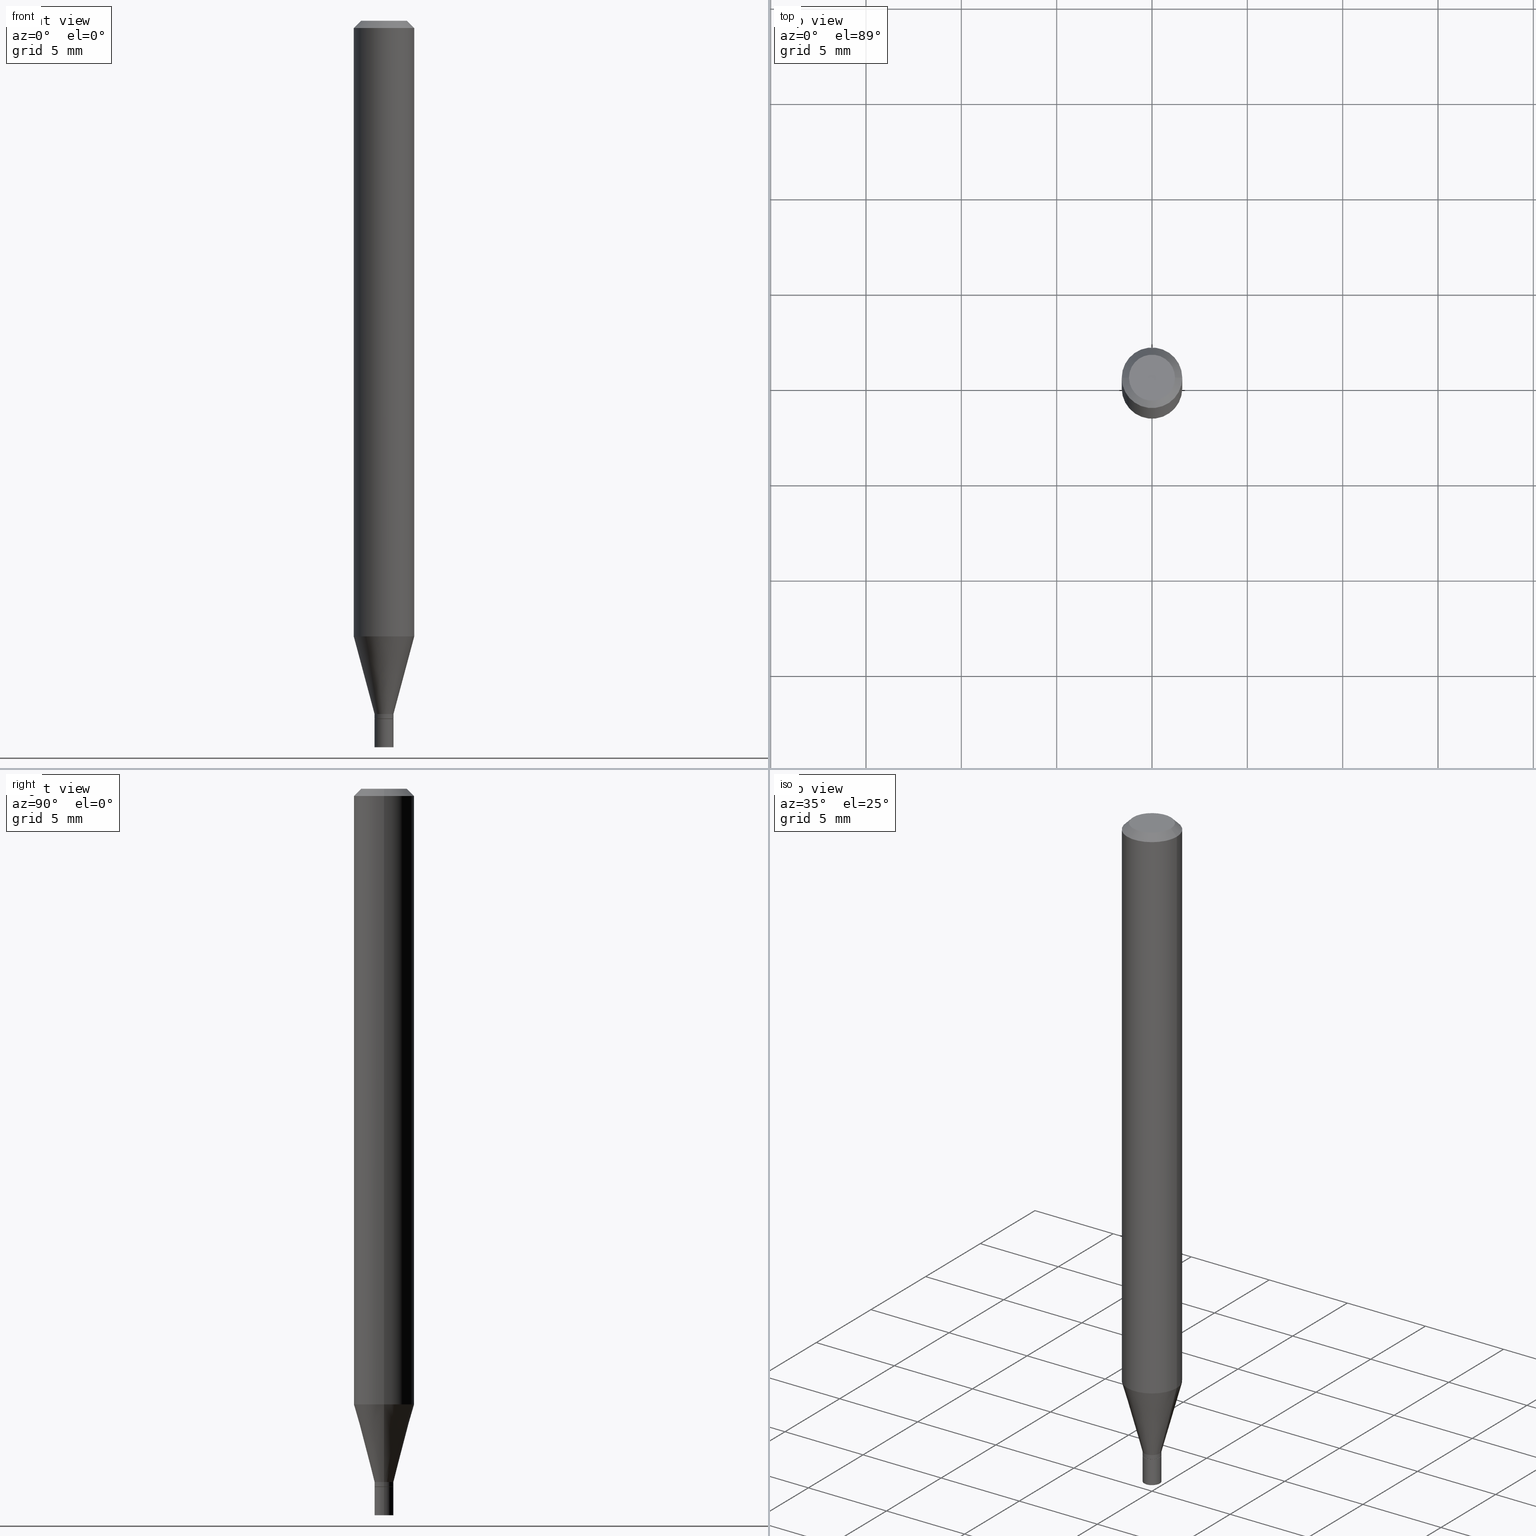
[diagram: canonical four-view strip — front | top / right | iso, engineering-drawing reading convention]
A machine part, canonical four-view strip (front | top / right | iso — engineering-drawing reading convention). The complete STEP part file that produces these views, byte-faithful:
ISO-10303-21;
HEADER;
FILE_DESCRIPTION (( 'STEP AP203' ),
    '1' );
FILE_NAME ('01119.STEP',
    '2024-03-19T23:05:25',
    ( '' ),
    ( '' ),
    'SwSTEP 2.0',
    'SolidWorks 2023',
    '' );
FILE_SCHEMA (( 'CONFIG_CONTROL_DESIGN' ));
ENDSEC;

DATA;
#1 = CARTESIAN_POINT ( 'NONE',  ( -0.04749999999999999362, 3.578768372314200645E-16, -5.645421759935625219E-16 ) ) ;
#2 =( NAMED_UNIT ( * ) PLANE_ANGLE_UNIT ( ) SI_UNIT ( $, .RADIAN. ) );
#3 = ADVANCED_FACE ( 'NONE', ( #386 ), #70, .T. ) ;
#4 = DIRECTION ( 'NONE',  ( -2.445468806185136597E-29, 3.491481338843145583E-15, 1.000000000000000000 ) ) ;
#5 = DIRECTION ( 'NONE',  ( -2.445468806185136877E-29, 3.491481338843145188E-15, 1.000000000000000000 ) ) ;
#6 = CARTESIAN_POINT ( 'NONE',  ( 3.108244201234690449E-29, -4.437748949293590216E-15, -1.271021815274538280 ) ) ;
#7 = VECTOR ( 'NONE', #207, 39.37007874015748854 ) ;
#8 = DIRECTION ( 'NONE',  ( -2.438088387897960049E-29, 3.491481338843145188E-15, 1.000000000000000000 ) ) ;
#9 = EDGE_LOOP ( 'NONE', ( #125, #135, #76, #274 ) ) ;
#10 = DIRECTION ( 'NONE',  ( 1.000000000000000000, -6.982962677686258033E-15, 0.000000000000000000 ) ) ;
#11 = DIRECTION ( 'NONE',  ( 1.000000000000000000, -6.982962677686267499E-15, 4.852736867747366768E-29 ) ) ;
#12 = ORIENTED_EDGE ( 'NONE', *, *, #420, .F. ) ;
#13 = FACE_OUTER_BOUND ( 'NONE', #128, .T. ) ;
#14 = ORIENTED_EDGE ( 'NONE', *, *, #58, .F. ) ;
#15 = CIRCLE ( 'NONE', #410, 0.04749999999999999362 ) ;
#16 = ORIENTED_EDGE ( 'NONE', *, *, #23, .F. ) ;
#17 = CALENDAR_DATE ( 2024, 19, 3 ) ;
#18 = DIRECTION ( 'NONE',  ( 1.000000000000000000, -6.982962677686267499E-15, 4.852736867747366768E-29 ) ) ;
#19 = CARTESIAN_POINT ( 'NONE',  ( 0.04749999999999999362, -4.035134999187588484E-16, -5.645421759935574929E-16 ) ) ;
#20 = ORIENTED_EDGE ( 'NONE', *, *, #237, .F. ) ;
#21 = PERSON_AND_ORGANIZATION ( #447, #236 ) ;
#22 = CC_DESIGN_APPROVAL ( #196, ( #311 ) ) ;
#23 = EDGE_CURVE ( 'NONE', #419, #407, #139, .T. ) ;
#24 = CARTESIAN_POINT ( 'NONE',  ( 3.525143284115875149E-29, -5.032970349942394371E-15, -1.441500000000000226 ) ) ;
#25 = CARTESIAN_POINT ( 'NONE',  ( 0.01949999999999992017, -5.134223308768844733E-15, -1.431499999999999995 ) ) ;
#26 = CIRCLE ( 'NONE', #203, 0.06250000000000000000 ) ;
#27 = CARTESIAN_POINT ( 'NONE',  ( 0.000000000000000000, 0.000000000000000000, 0.000000000000000000 ) ) ;
#28 = APPROVAL_PERSON_ORGANIZATION ( #405, #196, #49 ) ;
#29 = DIRECTION ( 'NONE',  ( 1.000000000000000000, -6.982962677686266711E-15, 4.876176775795935793E-29 ) ) ;
#30 = DIRECTION ( 'NONE',  ( 1.000000000000000000, -6.982962677686287221E-15, 0.000000000000000000 ) ) ;
#31 = LINE ( 'NONE', #315, #433 ) ;
#32 = CIRCLE ( 'NONE', #366, 0.06250000000000000000 ) ;
#33 = CC_DESIGN_PERSON_AND_ORGANIZATION_ASSIGNMENT ( #240, #340, ( #311 ) ) ;
#34 = AXIS2_PLACEMENT_3D ( 'NONE', #256, #466, #328 ) ;
#35 = FACE_OUTER_BOUND ( 'NONE', #342, .T. ) ;
#36 = CARTESIAN_POINT ( 'NONE',  ( 3.584916967085606921E-29, -5.356492647442320375E-15, -1.500000000000000222 ) ) ;
#37 = DIRECTION ( 'NONE',  ( 2.445468806185136597E-29, -3.491481338843145583E-15, -1.000000000000000000 ) ) ;
#38 = ORIENTED_EDGE ( 'NONE', *, *, #286, .T. ) ;
#39 = EDGE_CURVE ( 'NONE', #284, #453, #457, .T. ) ;
#40 = VERTEX_POINT ( 'NONE', #1 ) ;
#41 = CIRCLE ( 'NONE', #307, 0.01949999999999992017 ) ;
#42 = LINE ( 'NONE', #431, #169 ) ;
#43 = AXIS2_PLACEMENT_3D ( 'NONE', #138, #279, #10 ) ;
#44 = LINE ( 'NONE', #194, #7 ) ;
#45 = DATE_AND_TIME ( #272, #99 ) ;
#46 = ORIENTED_EDGE ( 'NONE', *, *, #223, .F. ) ;
#47 = APPROVAL_DATE_TIME ( #411, #61 ) ;
#48 = ORIENTED_EDGE ( 'NONE', *, *, #229, .T. ) ;
#49 = APPROVAL_ROLE ( '' ) ;
#50 = VECTOR ( 'NONE', #127, 39.37007874015748143 ) ;
#51 = APPROVAL_PERSON_ORGANIZATION ( #442, #61, #200 ) ;
#52 = ORIENTED_EDGE ( 'NONE', *, *, #211, .T. ) ;
#53 = CARTESIAN_POINT ( 'NONE',  ( -0.01899999999999999953, -4.897967230147975215E-15, -1.441500000000000226 ) ) ;
#54 = ORIENTED_EDGE ( 'NONE', *, *, #401, .F. ) ;
#55 = DIRECTION ( 'NONE',  ( 1.000000000000000000, -6.982962677686258033E-15, 0.000000000000000000 ) ) ;
#56 = MANIFOLD_SOLID_BREP ( 'Body-Move/Copy2[2]', #201 ) ;
#57 = LINE ( 'NONE', #398, #359 ) ;
#58 = EDGE_CURVE ( 'NONE', #332, #114, #175, .T. ) ;
#59 = VERTEX_POINT ( 'NONE', #104 ) ;
#60 = CONICAL_SURFACE ( 'NONE', #210, 0.01949999999999992017, 0.2617993877991499629 ) ;
#61 = APPROVAL ( #310, 'UNSPECIFIED' ) ;
#62 = DIRECTION ( 'NONE',  ( 0.7071067811865608954, -7.319954787623300222E-15, -0.7071067811865341390 ) ) ;
#63 = DIRECTION ( 'NONE',  ( 2.445468806185136597E-29, -3.491481338843145583E-15, -1.000000000000000000 ) ) ;
#64 = CARTESIAN_POINT ( 'NONE',  ( -0.01949999999999992017, -4.859499703080744245E-15, -1.431499999999999995 ) ) ;
#65 = ADVANCED_FACE ( 'NONE', ( #424 ), #73, .T. ) ;
#66 = AXIS2_PLACEMENT_3D ( 'NONE', #351, #219, #322 ) ;
#67 = FACE_OUTER_BOUND ( 'NONE', #9, .T. ) ;
#68 = CARTESIAN_POINT ( 'NONE',  ( -0.01949999999999992017, 1.385558334732189691E-16, -9.591923425997026856E-31 ) ) ;
#69 = DIRECTION ( 'NONE',  ( -2.445468806185136877E-29, 3.491481338843145188E-15, 1.000000000000000000 ) ) ;
#70 = CYLINDRICAL_SURFACE ( 'NONE', #352, 0.01949999999999992017 ) ;
#71 = ADVANCED_FACE ( 'NONE', ( #387 ), #281, .T. ) ;
#72 = DIRECTION ( 'NONE',  ( -2.445468806185136597E-29, 3.491481338843145583E-15, 1.000000000000000000 ) ) ;
#73 = CYLINDRICAL_SURFACE ( 'NONE', #409, 0.01949999999999992017 ) ;
#74 = CIRCLE ( 'NONE', #43, 0.01949999999999999997 ) ;
#75 = DIRECTION ( 'NONE',  ( -2.445468806185136597E-29, 3.491481338843145583E-15, 1.000000000000000000 ) ) ;
#76 = ORIENTED_EDGE ( 'NONE', *, *, #23, .T. ) ;
#77 = CC_DESIGN_DATE_AND_TIME_ASSIGNMENT ( #365, #202, ( #161 ) ) ;
#78 = DIRECTION ( 'NONE',  ( 1.000000000000000000, -6.982962677686266711E-15, 0.000000000000000000 ) ) ;
#79 = EDGE_LOOP ( 'NONE', ( #96, #171 ) ) ;
#80 = MECHANICAL_CONTEXT ( 'NONE', #367, 'mechanical' ) ;
#81 = DIRECTION ( 'NONE',  ( -2.445468806185136597E-29, 3.491481338843145583E-15, 1.000000000000000000 ) ) ;
#82 = VERTEX_POINT ( 'NONE', #144 ) ;
#83 = ADVANCED_BREP_SHAPE_REPRESENTATION ( '01119', ( #364, #56, #34 ), #292 ) ;
#84 = CARTESIAN_POINT ( 'NONE',  ( 3.500688596054023043E-29, -4.998055536553962721E-15, -1.431499999999999995 ) ) ;
#85 = AXIS2_PLACEMENT_3D ( 'NONE', #173, #278, #418 ) ;
#86 = ORIENTED_EDGE ( 'NONE', *, *, #39, .T. ) ;
#87 = EDGE_LOOP ( 'NONE', ( #46, #225, #38, #117 ) ) ;
#88 = DIRECTION ( 'NONE',  ( -2.445468806185136597E-29, 3.491481338843145583E-15, 1.000000000000000000 ) ) ;
#89 = CIRCLE ( 'NONE', #271, 0.01899999999999999953 ) ;
#90 = DIRECTION ( 'NONE',  ( -2.445468806185136877E-29, 3.491481338843145188E-15, 1.000000000000000000 ) ) ;
#91 = CARTESIAN_POINT ( 'NONE',  ( 0.000000000000000000, 0.000000000000000000, 0.000000000000000000 ) ) ;
#92 = SECURITY_CLASSIFICATION ( '', '', #162 ) ;
#93 = COORDINATED_UNIVERSAL_TIME_OFFSET ( 5, 0, .BEHIND. ) ;
#94 = FACE_OUTER_BOUND ( 'NONE', #160, .T. ) ;
#95 = EDGE_CURVE ( 'NONE', #114, #332, #269, .T. ) ;
#96 = ORIENTED_EDGE ( 'NONE', *, *, #140, .T. ) ;
#97 = LINE ( 'NONE', #378, #384 ) ;
#98 = AXIS2_PLACEMENT_3D ( 'NONE', #118, #152, #402 ) ;
#99 = LOCAL_TIME ( 19, 5, 25.00000000000000000, #373 ) ;
#100 = VERTEX_POINT ( 'NONE', #220 ) ;
#101 = PLANE ( 'NONE',  #85 ) ;
#102 = DIRECTION ( 'NONE',  ( -2.445468806185136597E-29, 3.491481338843145583E-15, 1.000000000000000000 ) ) ;
#103 = EDGE_CURVE ( 'NONE', #462, #191, #41, .T. ) ;
#104 = CARTESIAN_POINT ( 'NONE',  ( -0.06250000000000000000, -3.993659739443527600E-15, -1.271021815274538280 ) ) ;
#105 = CIRCLE ( 'NONE', #313, 0.01899999999999999953 ) ;
#106 = EDGE_CURVE ( 'NONE', #419, #59, #193, .T. ) ;
#107 = DIRECTION ( 'NONE',  ( 1.000000000000000000, -6.982962677686267499E-15, 4.876176775795935793E-29 ) ) ;
#108 = CC_DESIGN_DATE_AND_TIME_ASSIGNMENT ( #45, #448, ( #92 ) ) ;
#109 = CYLINDRICAL_SURFACE ( 'NONE', #443, 0.06250000000000000000 ) ;
#110 = APPROVAL_ROLE ( '' ) ;
#111 = AXIS2_PLACEMENT_3D ( 'NONE', #116, #437, #11 ) ;
#112 = DIRECTION ( 'NONE',  ( 1.000000000000000000, -6.982962677686265922E-15, 4.876176775795935793E-29 ) ) ;
#113 = DIRECTION ( 'NONE',  ( 1.000000000000000000, -6.982962677686265922E-15, 4.876176775795935793E-29 ) ) ;
#114 = VERTEX_POINT ( 'NONE', #185 ) ;
#115 = EDGE_CURVE ( 'NONE', #453, #362, #31, .T. ) ;
#116 = CARTESIAN_POINT ( 'NONE',  ( 1.380570281168130538E-44, -1.971088472471417818E-30, -5.645421759935600567E-16 ) ) ;
#117 = ORIENTED_EDGE ( 'NONE', *, *, #255, .F. ) ;
#118 = CARTESIAN_POINT ( 'NONE',  ( 0.000000000000000000, 0.000000000000000000, 0.000000000000000000 ) ) ;
#119 = EDGE_LOOP ( 'NONE', ( #234, #137, #436, #413 ) ) ;
#120 = DIRECTION ( 'NONE',  ( -2.445468806185136597E-29, 3.491481338843145583E-15, 1.000000000000000000 ) ) ;
#121 = ADVANCED_FACE ( 'NONE', ( #67 ), #109, .T. ) ;
#122 = CYLINDRICAL_SURFACE ( 'NONE', #257, 0.06250000000000000000 ) ;
#123 = ORIENTED_EDGE ( 'NONE', *, *, #401, .T. ) ;
#124 = APPROVAL_STATUS ( 'not_yet_approved' ) ;
#125 = ORIENTED_EDGE ( 'NONE', *, *, #429, .F. ) ;
#126 = APPROVAL_DATE_TIME ( #408, #196 ) ;
#127 = DIRECTION ( 'NONE',  ( -2.445468806185136877E-29, 3.491481338843145188E-15, 1.000000000000000000 ) ) ;
#128 = EDGE_LOOP ( 'NONE', ( #308, #213, #277, #16 ) ) ;
#129 = DIRECTION ( 'NONE',  ( -2.445468806185136597E-29, 3.491481338843145583E-15, 1.000000000000000000 ) ) ;
#130 = CARTESIAN_POINT ( 'NONE',  ( 3.525143284115875149E-29, -5.032970349942394371E-15, -1.441500000000000226 ) ) ;
#131 = DIRECTION ( 'NONE',  ( -2.445468806185136597E-29, 3.491481338843145583E-15, 1.000000000000000000 ) ) ;
#132 = DIRECTION ( 'NONE',  ( -0.2588190451025212391, 5.211531920934549464E-15, 0.9659258262890679791 ) ) ;
#133 = AXIS2_PLACEMENT_3D ( 'NONE', #205, #120, #209 ) ;
#134 = ADVANCED_FACE ( 'NONE', ( #35 ), #216, .T. ) ;
#135 = ORIENTED_EDGE ( 'NONE', *, *, #155, .T. ) ;
#136 = FACE_OUTER_BOUND ( 'NONE', #397, .T. ) ;
#137 = ORIENTED_EDGE ( 'NONE', *, *, #314, .T. ) ;
#138 = CARTESIAN_POINT ( 'NONE',  ( 3.668203209277704895E-29, -5.237222008264718177E-15, -1.500000000000000222 ) ) ;
#139 = LINE ( 'NONE', #417, #157 ) ;
#140 = EDGE_CURVE ( 'NONE', #40, #399, #15, .T. ) ;
#141 = AXIS2_PLACEMENT_3D ( 'NONE', #84, #75, #361 ) ;
#142 = DIRECTION ( 'NONE',  ( 1.000000000000000000, -6.982962677686281699E-15, 0.000000000000000000 ) ) ;
#143 = PERSON_AND_ORGANIZATION_ROLE ( 'design_owner' ) ;
#144 = CARTESIAN_POINT ( 'NONE',  ( -0.01899999999999999953, -4.895318002973864803E-15, -1.441500000000000226 ) ) ;
#145 = COORDINATED_UNIVERSAL_TIME_OFFSET ( 5, 0, .BEHIND. ) ;
#146 = UNCERTAINTY_MEASURE_WITH_UNIT (LENGTH_MEASURE( 1.000000000000000082E-05 ), #290, 'distance_accuracy_value', 'NONE');
#147 = CARTESIAN_POINT ( 'NONE',  ( 0.06250000000000000000, -4.888073874380388472E-16, -0.01499999999999999944 ) ) ;
#148 = FACE_OUTER_BOUND ( 'NONE', #208, .T. ) ;
#149 = ADVANCED_FACE ( 'NONE', ( #224 ), #357, .T. ) ;
#150 = AXIS2_PLACEMENT_3D ( 'NONE', #91, #81, #113 ) ;
#151 = ORIENTED_EDGE ( 'NONE', *, *, #237, .T. ) ;
#152 = DIRECTION ( 'NONE',  ( -2.445468806185136597E-29, 3.491481338843145583E-15, 1.000000000000000000 ) ) ;
#153 = ORIENTED_EDGE ( 'NONE', *, *, #155, .F. ) ;
#154 = ORIENTED_EDGE ( 'NONE', *, *, #267, .T. ) ;
#155 = EDGE_CURVE ( 'NONE', #59, #419, #244, .T. ) ;
#156 = ORIENTED_EDGE ( 'NONE', *, *, #39, .F. ) ;
#157 = VECTOR ( 'NONE', #69, 39.37007874015748143 ) ;
#158 = DIMENSIONAL_EXPONENTS ( 1.000000000000000000, 0.000000000000000000, 0.000000000000000000, 0.000000000000000000, 0.000000000000000000, 0.000000000000000000, 0.000000000000000000 ) ;
#159 = CARTESIAN_POINT ( 'NONE',  ( 0.01899999999999999953, -5.165646640818434164E-15, -1.441500000000000226 ) ) ;
#160 = EDGE_LOOP ( 'NONE', ( #300, #12 ) ) ;
#161 = PRODUCT_DEFINITION ( 'UNKNOWN', '', #311, #261 ) ;
#162 = SECURITY_CLASSIFICATION_LEVEL ( 'unclassified' ) ;
#163 = CYLINDRICAL_SURFACE ( 'NONE', #150, 0.01949999999999999997 ) ;
#164 = DIRECTION ( 'NONE',  ( -2.445468806185136597E-29, 3.491481338843145583E-15, 1.000000000000000000 ) ) ;
#165 = CARTESIAN_POINT ( 'NONE',  ( 3.500688596054023043E-29, -4.998055536553962721E-15, -1.431499999999999995 ) ) ;
#166 = CC_DESIGN_PERSON_AND_ORGANIZATION_ASSIGNMENT ( #368, #197, ( #311 ) ) ;
#167 = COORDINATED_UNIVERSAL_TIME_OFFSET ( 5, 0, .BEHIND. ) ;
#168 = DIRECTION ( 'NONE',  ( 1.000000000000000000, -6.982962677686281699E-15, 0.000000000000000000 ) ) ;
#169 = VECTOR ( 'NONE', #5, 39.37007874015748143 ) ;
#170 = APPROVAL_PERSON_ORGANIZATION ( #298, #275, #110 ) ;
#171 = ORIENTED_EDGE ( 'NONE', *, *, #223, .T. ) ;
#172 = ORIENTED_EDGE ( 'NONE', *, *, #229, .F. ) ;
#173 = CARTESIAN_POINT ( 'NONE',  ( 1.361677722149174363E-16, 0.01949999999999496580, -1.441500000000000226 ) ) ;
#174 = FACE_OUTER_BOUND ( 'NONE', #227, .T. ) ;
#175 = CIRCLE ( 'NONE', #430, 0.01949999999999992017 ) ;
#176 = AXIS2_PLACEMENT_3D ( 'NONE', #24, #131, #168 ) ;
#177 = AXIS2_PLACEMENT_3D ( 'NONE', #316, #344, #461 ) ;
#178 = CARTESIAN_POINT ( 'NONE',  ( 3.108244201234690449E-29, -4.437748949293590216E-15, -1.271021815274538280 ) ) ;
#179 = PLANE ( 'NONE',  #177 ) ;
#180 = DIRECTION ( 'NONE',  ( -2.445468806185136597E-29, 3.491481338843145583E-15, 1.000000000000000000 ) ) ;
#181 = ADVANCED_FACE ( 'NONE', ( #148 ), #163, .T. ) ;
#182 = CARTESIAN_POINT ( 'NONE',  ( 3.525143284115875149E-29, -5.032970349942394371E-15, -1.441500000000000226 ) ) ;
#183 = PRODUCT_RELATED_PRODUCT_CATEGORY ( 'detail', '', ( #388 ) ) ;
#184 = CARTESIAN_POINT ( 'NONE',  ( -0.01949999999999999997, -4.996540345630337403E-15, -1.500000000000000222 ) ) ;
#185 = CARTESIAN_POINT ( 'NONE',  ( -0.01949999999999992017, -4.426579721262135923E-15, -1.431499999999999995 ) ) ;
#186 = CC_DESIGN_SECURITY_CLASSIFICATION ( #92, ( #311 ) ) ;
#187 = APPLICATION_PROTOCOL_DEFINITION ( 'international standard', 'config_control_design', 1994, #367 ) ;
#188 = CARTESIAN_POINT ( 'NONE',  ( 3.668203209277705088E-31, -5.237222008264718399E-17, -0.01499999999999999944 ) ) ;
#189 = ADVANCED_FACE ( 'NONE', ( #435 ), #377, .T. ) ;
#190 = CARTESIAN_POINT ( 'NONE',  ( -0.01949999999999992017, -4.892668775799754391E-15, -1.441000000000000281 ) ) ;
#191 = VERTEX_POINT ( 'NONE', #190 ) ;
#192 = PLANE ( 'NONE',  #347 ) ;
#193 = CIRCLE ( 'NONE', #249, 0.06250000000000000000 ) ;
#194 = CARTESIAN_POINT ( 'NONE',  ( 0.01949999999999992017, -5.134223308768844733E-15, -1.431499999999999995 ) ) ;
#195 = EDGE_LOOP ( 'NONE', ( #360, #154, #376, #259 ) ) ;
#196 = APPROVAL ( #124, 'UNSPECIFIED' ) ;
#197 = PERSON_AND_ORGANIZATION_ROLE ( 'design_supplier' ) ;
#198 = DIRECTION ( 'NONE',  ( -2.445468806185136877E-29, 3.491481338843145188E-15, 1.000000000000000000 ) ) ;
#199 = ORIENTED_EDGE ( 'NONE', *, *, #320, .T. ) ;
#200 = APPROVAL_ROLE ( '' ) ;
#201 = CLOSED_SHELL ( 'NONE', ( #65, #334, #189, #380, #370, #440, #121, #134, #302, #243, #71, #3 ) ) ;
#202 = DATE_TIME_ROLE ( 'creation_date' ) ;
#203 = AXIS2_PLACEMENT_3D ( 'NONE', #214, #455, #385 ) ;
#204 = ORIENTED_EDGE ( 'NONE', *, *, #95, .F. ) ;
#205 = CARTESIAN_POINT ( 'NONE',  ( 3.523920549712782908E-29, -5.031224609272974445E-15, -1.441000000000000281 ) ) ;
#206 = CARTESIAN_POINT ( 'NONE',  ( -0.06250000000000000000, -1.800971374838056229E-15, -0.01499999999999999944 ) ) ;
#207 = DIRECTION ( 'NONE',  ( 0.2588190451025212391, 1.565188264969622362E-15, 0.9659258262890679791 ) ) ;
#208 = EDGE_LOOP ( 'NONE', ( #86, #297, #215, #348 ) ) ;
#209 = DIRECTION ( 'NONE',  ( 1.000000000000000000, -6.982962677686287221E-15, 0.000000000000000000 ) ) ;
#210 = AXIS2_PLACEMENT_3D ( 'NONE', #165, #88, #331 ) ;
#211 = EDGE_CURVE ( 'NONE', #393, #462, #273, .T. ) ;
#212 = FACE_OUTER_BOUND ( 'NONE', #79, .T. ) ;
#213 = ORIENTED_EDGE ( 'NONE', *, *, #429, .T. ) ;
#214 = CARTESIAN_POINT ( 'NONE',  ( 3.668203209277705088E-31, -5.237222008264718399E-17, -0.01499999999999999944 ) ) ;
#215 = ORIENTED_EDGE ( 'NONE', *, *, #395, .F. ) ;
#216 = CONICAL_SURFACE ( 'NONE', #321, 0.06250000000000000000, 0.7853981633974672638 ) ;
#217 = EDGE_CURVE ( 'NONE', #339, #407, #32, .T. ) ;
#218 = CARTESIAN_POINT ( 'NONE',  ( 1.380570281168130538E-44, -1.971088472471417818E-30, -5.645421759935600567E-16 ) ) ;
#219 = DIRECTION ( 'NONE',  ( -2.445468806185136597E-29, 3.491481338843145583E-15, 1.000000000000000000 ) ) ;
#220 = CARTESIAN_POINT ( 'NONE',  ( 0.01949999999999999997, -5.169138122157276382E-15, -1.441500000000000226 ) ) ;
#221 =( NAMED_UNIT ( * ) SI_UNIT ( $, .STERADIAN. ) SOLID_ANGLE_UNIT ( ) );
#222 = DIRECTION ( 'NONE',  ( 1.000000000000000000, -6.982962677686267499E-15, 4.876176775795935793E-29 ) ) ;
#223 = EDGE_CURVE ( 'NONE', #399, #40, #282, .T. ) ;
#224 = FACE_OUTER_BOUND ( 'NONE', #119, .T. ) ;
#225 = ORIENTED_EDGE ( 'NONE', *, *, #295, .T. ) ;
#226 = DIRECTION ( 'NONE',  ( -0.7071067811865642261, 7.493145998870414114E-15, 0.7071067811865309194 ) ) ;
#227 = EDGE_LOOP ( 'NONE', ( #438, #48, #303, #325 ) ) ;
#228 = APPLICATION_PROTOCOL_DEFINITION ( 'international standard', 'config_control_design', 1994, #463 ) ;
#229 = EDGE_CURVE ( 'NONE', #82, #191, #374, .T. ) ;
#230 = AXIS2_PLACEMENT_3D ( 'NONE', #317, #102, #252 ) ;
#231 = DIRECTION ( 'NONE',  ( -0.7071067811865608954, 2.468850131082397083E-15, -0.7071067811865341390 ) ) ;
#232 = AXIS2_PLACEMENT_3D ( 'NONE', #36, #394, #112 ) ;
#233 = PERSON_AND_ORGANIZATION ( #447, #236 ) ;
#234 = ORIENTED_EDGE ( 'NONE', *, *, #115, .F. ) ;
#235 = LINE ( 'NONE', #403, #392 ) ;
#236 = ORGANIZATION ( 'UNSPECIFIED', 'UNSPECIFIED', '' ) ;
#237 = EDGE_CURVE ( 'NONE', #462, #332, #262, .T. ) ;
#238 = FACE_OUTER_BOUND ( 'NONE', #195, .T. ) ;
#239 = ORIENTED_EDGE ( 'NONE', *, *, #395, .T. ) ;
#240 = PERSON_AND_ORGANIZATION ( #447, #236 ) ;
#241 = CARTESIAN_POINT ( 'NONE',  ( 3.525143284115875149E-29, -5.032970349942394371E-15, -1.441500000000000226 ) ) ;
#242 = EDGE_LOOP ( 'NONE', ( #330, #123, #14, #20 ) ) ;
#243 = ADVANCED_FACE ( 'NONE', ( #94 ), #192, .F. ) ;
#244 = CIRCLE ( 'NONE', #416, 0.06250000000000000000 ) ;
#245 = DIRECTION ( 'NONE',  ( 1.000000000000000000, -6.982962677686262766E-15, 0.000000000000000000 ) ) ;
#246 = CC_DESIGN_PERSON_AND_ORGANIZATION_ASSIGNMENT ( #233, #143, ( #388 ) ) ;
#247 = DIRECTION ( 'NONE',  ( -2.445468806185136597E-29, 3.491481338843145583E-15, 1.000000000000000000 ) ) ;
#248 = CARTESIAN_POINT ( 'NONE',  ( 0.01949999999999999997, -5.373389780479600977E-15, -1.500000000000000222 ) ) ;
#249 = AXIS2_PLACEMENT_3D ( 'NONE', #178, #287, #245 ) ;
#250 = LOCAL_TIME ( 19, 5, 25.00000000000000000, #145 ) ;
#251 = ORIENTED_EDGE ( 'NONE', *, *, #420, .T. ) ;
#252 = DIRECTION ( 'NONE',  ( 1.000000000000000000, -6.982962677686287221E-15, 0.000000000000000000 ) ) ;
#253 =( LENGTH_UNIT ( ) NAMED_UNIT ( * ) SI_UNIT ( $, .METRE. ) );
#254 = CARTESIAN_POINT ( 'NONE',  ( 0.000000000000000000, 0.000000000000000000, 0.000000000000000000 ) ) ;
#255 = EDGE_CURVE ( 'NONE', #40, #339, #57, .T. ) ;
#256 = CARTESIAN_POINT ( 'NONE',  ( 0.000000000000000000, 0.000000000000000000, 0.000000000000000000 ) ) ;
#257 = AXIS2_PLACEMENT_3D ( 'NONE', #264, #164, #371 ) ;
#258 = PLANE ( 'NONE',  #232 ) ;
#259 = ORIENTED_EDGE ( 'NONE', *, *, #260, .F. ) ;
#260 = EDGE_CURVE ( 'NONE', #332, #419, #44, .T. ) ;
#261 = DESIGN_CONTEXT ( 'detailed design', #463, 'design' ) ;
#262 = LINE ( 'NONE', #449, #50 ) ;
#263 = FACE_OUTER_BOUND ( 'NONE', #382, .T. ) ;
#264 = CARTESIAN_POINT ( 'NONE',  ( 0.000000000000000000, 0.000000000000000000, 0.000000000000000000 ) ) ;
#265 = ORIENTED_EDGE ( 'NONE', *, *, #140, .F. ) ;
#266 = DIRECTION ( 'NONE',  ( -2.445468806185136597E-29, 3.491481338843145583E-15, 1.000000000000000000 ) ) ;
#267 = EDGE_CURVE ( 'NONE', #114, #59, #428, .T. ) ;
#268 = COORDINATED_UNIVERSAL_TIME_OFFSET ( 5, 0, .BEHIND. ) ;
#269 = CIRCLE ( 'NONE', #230, 0.01949999999999992017 ) ;
#270 = EDGE_LOOP ( 'NONE', ( #375, #355, #406, #153 ) ) ;
#271 = AXIS2_PLACEMENT_3D ( 'NONE', #341, #129, #276 ) ;
#272 = CALENDAR_DATE ( 2024, 19, 3 ) ;
#273 = LINE ( 'NONE', #329, #291 ) ;
#274 = ORIENTED_EDGE ( 'NONE', *, *, #217, .F. ) ;
#275 = APPROVAL ( #285, 'UNSPECIFIED' ) ;
#276 = DIRECTION ( 'NONE',  ( 1.000000000000000000, -6.982962677686281699E-15, 0.000000000000000000 ) ) ;
#277 = ORIENTED_EDGE ( 'NONE', *, *, #286, .F. ) ;
#278 = DIRECTION ( 'NONE',  ( 2.438088387897960049E-29, -3.491481338843145188E-15, -1.000000000000000000 ) ) ;
#279 = DIRECTION ( 'NONE',  ( -2.445468806185136597E-29, 3.491481338843145583E-15, 1.000000000000000000 ) ) ;
#280 = CARTESIAN_POINT ( 'NONE',  ( 0.000000000000000000, 0.000000000000000000, 0.000000000000000000 ) ) ;
#281 = CONICAL_SURFACE ( 'NONE', #450, 0.01899999999999999953, 0.7853981633974718157 ) ;
#282 = CIRCLE ( 'NONE', #111, 0.04749999999999999362 ) ;
#283 = LOCAL_TIME ( 19, 5, 25.00000000000000000, #93 ) ;
#284 = VERTEX_POINT ( 'NONE', #248 ) ;
#285 = APPROVAL_STATUS ( 'not_yet_approved' ) ;
#286 = EDGE_CURVE ( 'NONE', #407, #339, #26, .T. ) ;
#287 = DIRECTION ( 'NONE',  ( -2.445468806185136597E-29, 3.491481338843145583E-15, 1.000000000000000000 ) ) ;
#288 = DATE_AND_TIME ( #389, #250 ) ;
#289 = DIRECTION ( 'NONE',  ( -2.445468806185136597E-29, 3.491481338843145583E-15, 1.000000000000000000 ) ) ;
#290 =( CONVERSION_BASED_UNIT ( 'INCH', #439 ) LENGTH_UNIT ( ) NAMED_UNIT ( #158 ) );
#291 = VECTOR ( 'NONE', #369, 39.37007874015748143 ) ;
#292 =( GEOMETRIC_REPRESENTATION_CONTEXT ( 3 ) GLOBAL_UNCERTAINTY_ASSIGNED_CONTEXT ( ( #146 ) ) GLOBAL_UNIT_ASSIGNED_CONTEXT ( ( #290, #2, #221 ) ) REPRESENTATION_CONTEXT ( 'NONE', 'WORKASPACE' ) );
#293 = DIRECTION ( 'NONE',  ( 1.000000000000000000, -6.982962677686262766E-15, 0.000000000000000000 ) ) ;
#294 = ORIENTED_EDGE ( 'NONE', *, *, #295, .F. ) ;
#295 = EDGE_CURVE ( 'NONE', #399, #407, #97, .T. ) ;
#296 = DIRECTION ( 'NONE',  ( 1.000000000000000000, -6.982962677686265922E-15, 4.876176775795935793E-29 ) ) ;
#297 = ORIENTED_EDGE ( 'NONE', *, *, #115, .T. ) ;
#298 = PERSON_AND_ORGANIZATION ( #447, #236 ) ;
#299 = CARTESIAN_POINT ( 'NONE',  ( 3.525143284115875149E-29, -5.032970349942394371E-15, -1.441500000000000226 ) ) ;
#300 = ORIENTED_EDGE ( 'NONE', *, *, #356, .F. ) ;
#301 = LOCAL_TIME ( 19, 5, 25.00000000000000000, #268 ) ;
#302 = ADVANCED_FACE ( 'NONE', ( #212 ), #179, .F. ) ;
#303 = ORIENTED_EDGE ( 'NONE', *, *, #103, .F. ) ;
#304 = CALENDAR_DATE ( 2024, 19, 3 ) ;
#305 = PERSON_AND_ORGANIZATION_ROLE ( 'creator' ) ;
#306 = CARTESIAN_POINT ( 'NONE',  ( 3.668203209277705088E-31, -5.237222008264718399E-17, -0.01499999999999999944 ) ) ;
#307 = AXIS2_PLACEMENT_3D ( 'NONE', #426, #324, #390 ) ;
#308 = ORIENTED_EDGE ( 'NONE', *, *, #106, .T. ) ;
#309 = VECTOR ( 'NONE', #90, 39.37007874015748143 ) ;
#310 = APPROVAL_STATUS ( 'not_yet_approved' ) ;
#311 = PRODUCT_DEFINITION_FORMATION_WITH_SPECIFIED_SOURCE ( 'ANY', '', #388, .NOT_KNOWN. ) ;
#312 = CARTESIAN_POINT ( 'NONE',  ( 3.525143284115875149E-29, -5.032970349942394371E-15, -1.441500000000000226 ) ) ;
#313 = AXIS2_PLACEMENT_3D ( 'NONE', #130, #72, #326 ) ;
#314 = EDGE_CURVE ( 'NONE', #453, #284, #74, .T. ) ;
#315 = CARTESIAN_POINT ( 'NONE',  ( -0.01949999999999999997, 1.385558334732195360E-16, -9.591923425997065392E-31 ) ) ;
#316 = CARTESIAN_POINT ( 'NONE',  ( 3.316907271900976096E-16, 0.04749999999999999362, -4.481164515918294248E-16 ) ) ;
#317 = CARTESIAN_POINT ( 'NONE',  ( 3.500688596054023043E-29, -4.998055536553962721E-15, -1.431499999999999995 ) ) ;
#318 = CC_DESIGN_PERSON_AND_ORGANIZATION_ASSIGNMENT ( #21, #333, ( #92 ) ) ;
#319 = DIRECTION ( 'NONE',  ( -2.445468806185136597E-29, 3.491481338843145583E-15, 1.000000000000000000 ) ) ;
#320 = EDGE_CURVE ( 'NONE', #191, #462, #335, .T. ) ;
#321 = AXIS2_PLACEMENT_3D ( 'NONE', #188, #63, #459 ) ;
#322 = DIRECTION ( 'NONE',  ( 1.000000000000000000, -6.982962677686258033E-15, 0.000000000000000000 ) ) ;
#323 = CARTESIAN_POINT ( 'NONE',  ( 0.01949999999999992017, -5.167392381487854879E-15, -1.441000000000000281 ) ) ;
#324 = DIRECTION ( 'NONE',  ( -2.445468806185136597E-29, 3.491481338843145583E-15, 1.000000000000000000 ) ) ;
#325 = ORIENTED_EDGE ( 'NONE', *, *, #211, .F. ) ;
#326 = DIRECTION ( 'NONE',  ( 1.000000000000000000, -6.982962677686281699E-15, 0.000000000000000000 ) ) ;
#327 = CIRCLE ( 'NONE', #451, 0.01949999999999999997 ) ;
#328 = DIRECTION ( 'NONE',  ( 1.000000000000000000, 0.000000000000000000, 0.000000000000000000 ) ) ;
#329 = CARTESIAN_POINT ( 'NONE',  ( 0.01899999999999999953, -5.165646640818434164E-15, -1.441500000000000226 ) ) ;
#330 = ORIENTED_EDGE ( 'NONE', *, *, #103, .T. ) ;
#331 = DIRECTION ( 'NONE',  ( 1.000000000000000000, -6.982962677686287221E-15, 0.000000000000000000 ) ) ;
#332 = VERTEX_POINT ( 'NONE', #25 ) ;
#333 = PERSON_AND_ORGANIZATION_ROLE ( 'classification_officer' ) ;
#334 = ADVANCED_FACE ( 'NONE', ( #174 ), #458, .T. ) ;
#335 = CIRCLE ( 'NONE', #133, 0.01949999999999992017 ) ;
#336 = SHAPE_DEFINITION_REPRESENTATION ( #414, #83 ) ;
#337 = DIRECTION ( 'NONE',  ( 1.000000000000000000, -6.982962677686258033E-15, 0.000000000000000000 ) ) ;
#338 = EDGE_CURVE ( 'NONE', #362, #100, #400, .T. ) ;
#339 = VERTEX_POINT ( 'NONE', #206 ) ;
#340 = PERSON_AND_ORGANIZATION_ROLE ( 'creator' ) ;
#341 = CARTESIAN_POINT ( 'NONE',  ( 3.525143284115875149E-29, -5.032970349942394371E-15, -1.441500000000000226 ) ) ;
#342 = EDGE_LOOP ( 'NONE', ( #294, #265, #379, #372 ) ) ;
#343 = CONICAL_SURFACE ( 'NONE', #141, 0.01949999999999992017, 0.2617993877991499629 ) ;
#344 = DIRECTION ( 'NONE',  ( 2.438088387897960049E-29, -3.491481338843145188E-15, -1.000000000000000000 ) ) ;
#345 = ADVANCED_FACE ( 'NONE', ( #136 ), #101, .F. ) ;
#346 = EDGE_LOOP ( 'NONE', ( #54, #199, #151, #204 ) ) ;
#347 = AXIS2_PLACEMENT_3D ( 'NONE', #241, #8, #296 ) ;
#348 = ORIENTED_EDGE ( 'NONE', *, *, #363, .F. ) ;
#349 = DIRECTION ( 'NONE',  ( -2.445468806185136597E-29, 3.491481338843145583E-15, 1.000000000000000000 ) ) ;
#350 = CC_DESIGN_PERSON_AND_ORGANIZATION_ASSIGNMENT ( #391, #305, ( #161 ) ) ;
#351 = CARTESIAN_POINT ( 'NONE',  ( 3.668203209277704895E-29, -5.237222008264718177E-15, -1.500000000000000222 ) ) ;
#352 = AXIS2_PLACEMENT_3D ( 'NONE', #280, #464, #222 ) ;
#353 = VECTOR ( 'NONE', #226, 39.37007874015748143 ) ;
#354 = DIRECTION ( 'NONE',  ( -2.445468806185136597E-29, 3.491481338843145583E-15, 1.000000000000000000 ) ) ;
#355 = ORIENTED_EDGE ( 'NONE', *, *, #95, .T. ) ;
#356 = EDGE_CURVE ( 'NONE', #393, #82, #89, .T. ) ;
#357 = CYLINDRICAL_SURFACE ( 'NONE', #98, 0.01949999999999999997 ) ;
#358 = EDGE_LOOP ( 'NONE', ( #172, #251, #52, #441 ) ) ;
#359 = VECTOR ( 'NONE', #231, 39.37007874015748143 ) ;
#360 = ORIENTED_EDGE ( 'NONE', *, *, #58, .T. ) ;
#361 = DIRECTION ( 'NONE',  ( 1.000000000000000000, -6.982962677686287221E-15, 0.000000000000000000 ) ) ;
#362 = VERTEX_POINT ( 'NONE', #445 ) ;
#363 = EDGE_CURVE ( 'NONE', #284, #100, #235, .T. ) ;
#364 = MANIFOLD_SOLID_BREP ( 'Body-Move/Copy2[1]', #415 ) ;
#365 = DATE_AND_TIME ( #17, #444 ) ;
#366 = AXIS2_PLACEMENT_3D ( 'NONE', #306, #4, #78 ) ;
#367 = APPLICATION_CONTEXT ( 'configuration controlled 3d designs of mechanical parts and assemblies' ) ;
#368 = PERSON_AND_ORGANIZATION ( #447, #236 ) ;
#369 = DIRECTION ( 'NONE',  ( 0.7071067811865642261, -2.468850131082431399E-15, 0.7071067811865309194 ) ) ;
#370 = ADVANCED_FACE ( 'NONE', ( #238 ), #60, .T. ) ;
#371 = DIRECTION ( 'NONE',  ( 1.000000000000000000, -6.982962677686266711E-15, 4.876176775795935793E-29 ) ) ;
#372 = ORIENTED_EDGE ( 'NONE', *, *, #217, .T. ) ;
#373 = COORDINATED_UNIVERSAL_TIME_OFFSET ( 5, 0, .BEHIND. ) ;
#374 = LINE ( 'NONE', #53, #353 ) ;
#375 = ORIENTED_EDGE ( 'NONE', *, *, #267, .F. ) ;
#376 = ORIENTED_EDGE ( 'NONE', *, *, #106, .F. ) ;
#377 = CONICAL_SURFACE ( 'NONE', #423, 0.06250000000000000000, 0.7853981633974672638 ) ;
#378 = CARTESIAN_POINT ( 'NONE',  ( 0.06250000000000000000, -4.811533449433679005E-16, -0.01499999999999999944 ) ) ;
#379 = ORIENTED_EDGE ( 'NONE', *, *, #255, .T. ) ;
#380 = ADVANCED_FACE ( 'NONE', ( #13 ), #122, .T. ) ;
#381 = LINE ( 'NONE', #68, #309 ) ;
#382 = EDGE_LOOP ( 'NONE', ( #156, #404 ) ) ;
#383 = DIRECTION ( 'NONE',  ( -2.445468806185136877E-29, 3.491481338843145188E-15, 1.000000000000000000 ) ) ;
#384 = VECTOR ( 'NONE', #62, 39.37007874015748143 ) ;
#385 = DIRECTION ( 'NONE',  ( 1.000000000000000000, -6.982962677686266711E-15, 0.000000000000000000 ) ) ;
#386 = FACE_OUTER_BOUND ( 'NONE', #346, .T. ) ;
#387 = FACE_OUTER_BOUND ( 'NONE', #358, .T. ) ;
#388 = PRODUCT ( '01119', '01119', '', ( #80 ) ) ;
#389 = CALENDAR_DATE ( 2024, 19, 3 ) ;
#390 = DIRECTION ( 'NONE',  ( 1.000000000000000000, -6.982962677686287221E-15, 0.000000000000000000 ) ) ;
#391 = PERSON_AND_ORGANIZATION ( #447, #236 ) ;
#392 = VECTOR ( 'NONE', #198, 39.37007874015748143 ) ;
#393 = VERTEX_POINT ( 'NONE', #159 ) ;
#394 = DIRECTION ( 'NONE',  ( -2.438088387897960049E-29, 3.491481338843145188E-15, 1.000000000000000000 ) ) ;
#395 = EDGE_CURVE ( 'NONE', #100, #362, #327, .T. ) ;
#396 = DIRECTION ( 'NONE',  ( -1.000000000000000000, 6.982962677686266711E-15, 0.000000000000000000 ) ) ;
#397 = EDGE_LOOP ( 'NONE', ( #239, #446 ) ) ;
#398 = CARTESIAN_POINT ( 'NONE',  ( -0.06250000000000000000, 3.840629472727444916E-16, -0.01499999999999999944 ) ) ;
#399 = VERTEX_POINT ( 'NONE', #19 ) ;
#400 = CIRCLE ( 'NONE', #432, 0.01949999999999999997 ) ;
#401 = EDGE_CURVE ( 'NONE', #191, #114, #381, .T. ) ;
#402 = DIRECTION ( 'NONE',  ( 1.000000000000000000, -6.982962677686265922E-15, 4.876176775795935793E-29 ) ) ;
#403 = CARTESIAN_POINT ( 'NONE',  ( 0.01949999999999999997, -1.361677722148821841E-16, 9.508544712802074656E-31 ) ) ;
#404 = ORIENTED_EDGE ( 'NONE', *, *, #314, .F. ) ;
#405 = PERSON_AND_ORGANIZATION ( #447, #236 ) ;
#406 = ORIENTED_EDGE ( 'NONE', *, *, #260, .T. ) ;
#407 = VERTEX_POINT ( 'NONE', #147 ) ;
#408 = DATE_AND_TIME ( #304, #301 ) ;
#409 = AXIS2_PLACEMENT_3D ( 'NONE', #27, #247, #107 ) ;
#410 = AXIS2_PLACEMENT_3D ( 'NONE', #218, #180, #18 ) ;
#411 = DATE_AND_TIME ( #454, #283 ) ;
#412 = CARTESIAN_POINT ( 'NONE',  ( 3.668203209277705088E-31, -5.237222008264718399E-17, -0.01499999999999999944 ) ) ;
#413 = ORIENTED_EDGE ( 'NONE', *, *, #338, .F. ) ;
#414 = PRODUCT_DEFINITION_SHAPE ( 'NONE', 'NONE',  #161 ) ;
#415 = CLOSED_SHELL ( 'NONE', ( #181, #460, #149, #345 ) ) ;
#416 = AXIS2_PLACEMENT_3D ( 'NONE', #6, #289, #293 ) ;
#417 = CARTESIAN_POINT ( 'NONE',  ( 0.06250000000000000000, -4.364351673553916694E-16, 3.047610484872459871E-30 ) ) ;
#418 = DIRECTION ( 'NONE',  ( -1.000000000000000000, 6.982962677686265922E-15, -4.876176775795935793E-29 ) ) ;
#419 = VERTEX_POINT ( 'NONE', #421 ) ;
#420 = EDGE_CURVE ( 'NONE', #82, #393, #105, .T. ) ;
#421 = CARTESIAN_POINT ( 'NONE',  ( 0.06250000000000000000, -4.874184116648982674E-15, -1.271021815274538280 ) ) ;
#422 = CARTESIAN_POINT ( 'NONE',  ( 3.500688596054023043E-29, -4.998055536553962721E-15, -1.431499999999999995 ) ) ;
#423 = AXIS2_PLACEMENT_3D ( 'NONE', #412, #37, #396 ) ;
#424 = FACE_OUTER_BOUND ( 'NONE', #242, .T. ) ;
#425 = FACE_OUTER_BOUND ( 'NONE', #270, .T. ) ;
#426 = CARTESIAN_POINT ( 'NONE',  ( 3.523920549712782908E-29, -5.031224609272974445E-15, -1.441000000000000281 ) ) ;
#427 = APPROVAL_DATE_TIME ( #288, #275 ) ;
#428 = LINE ( 'NONE', #64, #465 ) ;
#429 = EDGE_CURVE ( 'NONE', #59, #339, #42, .T. ) ;
#430 = AXIS2_PLACEMENT_3D ( 'NONE', #422, #349, #30 ) ;
#431 = CARTESIAN_POINT ( 'NONE',  ( -0.06250000000000000000, 4.440892098500626162E-16, -3.074334431409316114E-30 ) ) ;
#432 = AXIS2_PLACEMENT_3D ( 'NONE', #312, #456, #55 ) ;
#433 = VECTOR ( 'NONE', #383, 39.37007874015748143 ) ;
#434 = CC_DESIGN_APPROVAL ( #275, ( #161 ) ) ;
#435 = FACE_OUTER_BOUND ( 'NONE', #87, .T. ) ;
#436 = ORIENTED_EDGE ( 'NONE', *, *, #363, .T. ) ;
#437 = DIRECTION ( 'NONE',  ( -2.445468806185136597E-29, 3.491481338843145583E-15, 1.000000000000000000 ) ) ;
#438 = ORIENTED_EDGE ( 'NONE', *, *, #356, .T. ) ;
#439 = LENGTH_MEASURE_WITH_UNIT ( LENGTH_MEASURE( 0.02539999999999999897 ), #253 );
#440 = ADVANCED_FACE ( 'NONE', ( #425 ), #343, .T. ) ;
#441 = ORIENTED_EDGE ( 'NONE', *, *, #320, .F. ) ;
#442 = PERSON_AND_ORGANIZATION ( #447, #236 ) ;
#443 = AXIS2_PLACEMENT_3D ( 'NONE', #254, #354, #29 ) ;
#444 = LOCAL_TIME ( 19, 5, 25.00000000000000000, #167 ) ;
#445 = CARTESIAN_POINT ( 'NONE',  ( -0.01949999999999999997, -4.996540345630337403E-15, -1.441500000000000226 ) ) ;
#446 = ORIENTED_EDGE ( 'NONE', *, *, #338, .T. ) ;
#447 = PERSON ( 'UNSPECIFIED', 'UNSPECIFIED', 'UNSPECIFIED', ('UNSPECIFIED'), ('UNSPECIFIED'), ('UNSPECIFIED') ) ;
#448 = DATE_TIME_ROLE ( 'classification_date' ) ;
#449 = CARTESIAN_POINT ( 'NONE',  ( 0.01949999999999992017, -1.361677722148816664E-16, 9.508544712802036120E-31 ) ) ;
#450 = AXIS2_PLACEMENT_3D ( 'NONE', #182, #319, #142 ) ;
#451 = AXIS2_PLACEMENT_3D ( 'NONE', #299, #266, #337 ) ;
#452 = CC_DESIGN_APPROVAL ( #61, ( #92 ) ) ;
#453 = VERTEX_POINT ( 'NONE', #184 ) ;
#454 = CALENDAR_DATE ( 2024, 19, 3 ) ;
#455 = DIRECTION ( 'NONE',  ( -2.445468806185136597E-29, 3.491481338843145583E-15, 1.000000000000000000 ) ) ;
#456 = DIRECTION ( 'NONE',  ( -2.445468806185136597E-29, 3.491481338843145583E-15, 1.000000000000000000 ) ) ;
#457 = CIRCLE ( 'NONE', #66, 0.01949999999999999997 ) ;
#458 = CONICAL_SURFACE ( 'NONE', #176, 0.01899999999999999953, 0.7853981633974718157 ) ;
#459 = DIRECTION ( 'NONE',  ( -1.000000000000000000, 6.982962677686266711E-15, 0.000000000000000000 ) ) ;
#460 = ADVANCED_FACE ( 'NONE', ( #263 ), #258, .F. ) ;
#461 = DIRECTION ( 'NONE',  ( -1.000000000000000000, 6.982962677686265922E-15, -4.876176775795935793E-29 ) ) ;
#462 = VERTEX_POINT ( 'NONE', #323 ) ;
#463 = APPLICATION_CONTEXT ( 'configuration controlled 3d designs of mechanical parts and assemblies' ) ;
#464 = DIRECTION ( 'NONE',  ( -2.445468806185136597E-29, 3.491481338843145583E-15, 1.000000000000000000 ) ) ;
#465 = VECTOR ( 'NONE', #132, 39.37007874015748854 ) ;
#466 = DIRECTION ( 'NONE',  ( 0.000000000000000000, 0.000000000000000000, 1.000000000000000000 ) ) ;
ENDSEC;
END-ISO-10303-21;
